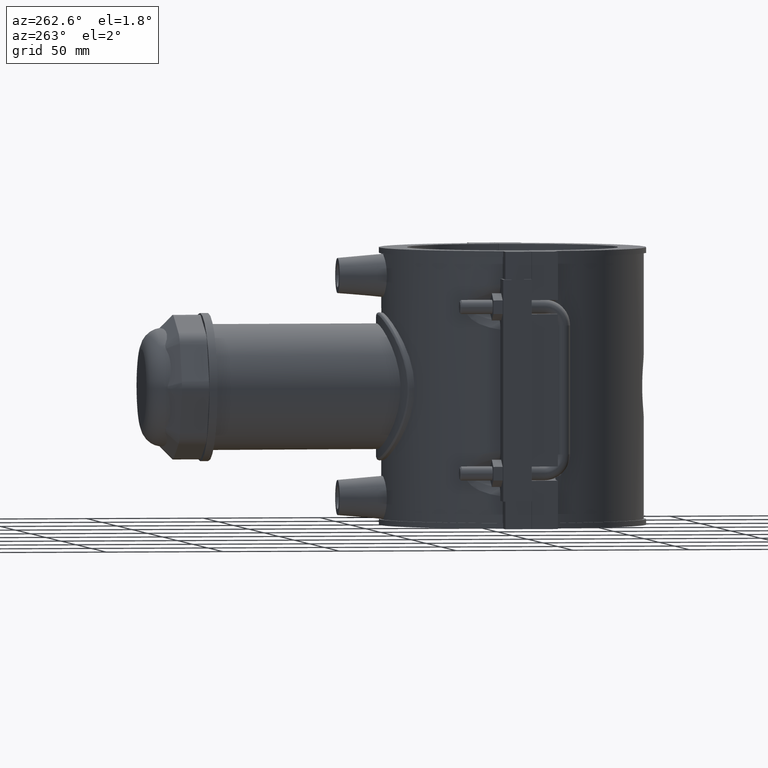
[diagram: clean part render]
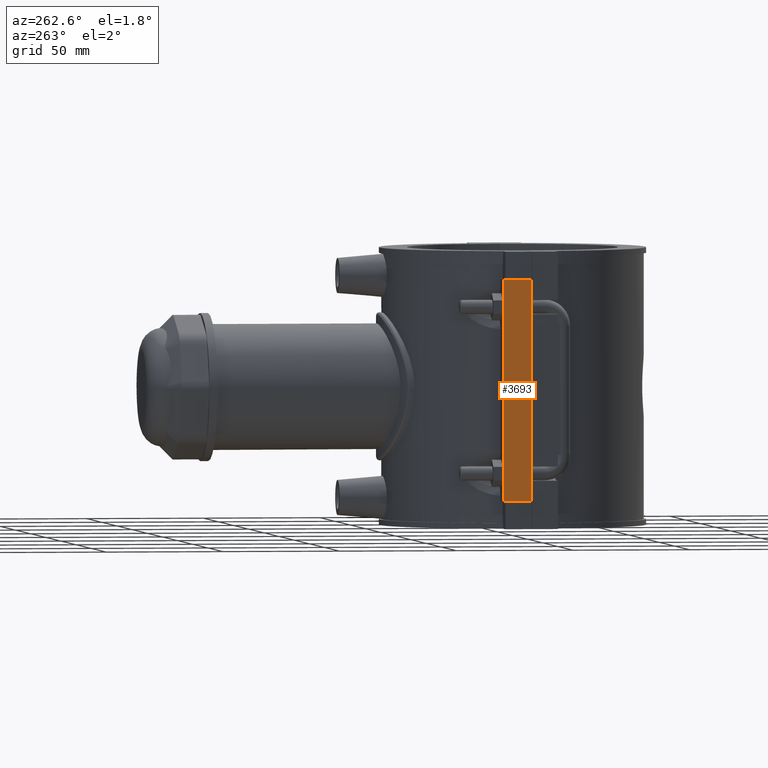
[diagram: same view with one face highlighted and labeled with its STEP entity id]
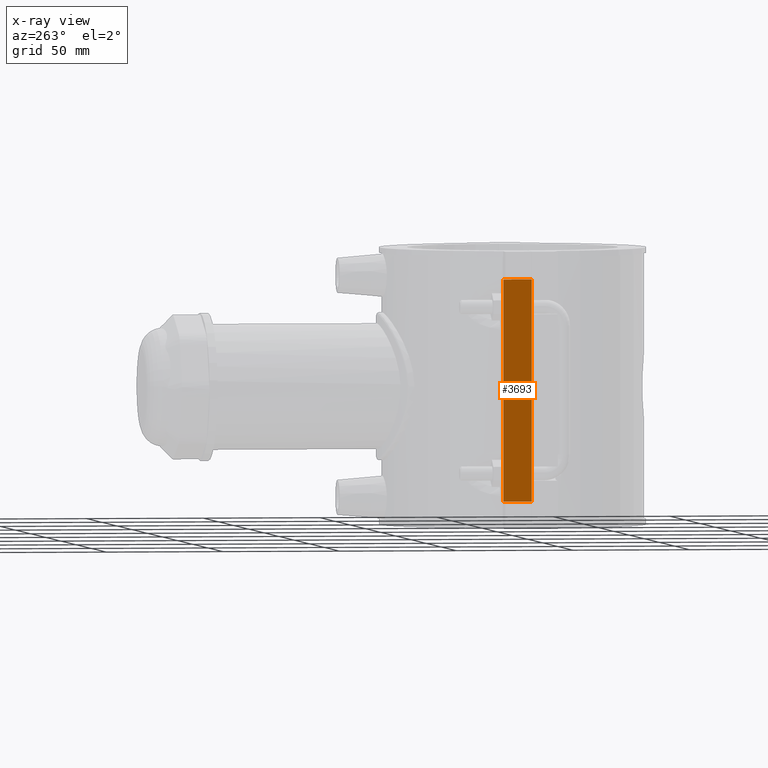
[diagram: x-ray of the same camera — body ghosted, the highlighted face saturated]
A machine part, auxiliary view. The second image highlights one B-rep face of the part: STEP entity #3693.
The next image is the same camera in x-ray: the body ghosted, the highlighted face saturated — about 0% of this face is hidden behind the body in this view.
In plain terms, the highlighted planar face has unit normal (1, 0, 0).
Its self-contained STEP definition (entity closure, byte-faithful):
#160=LINE('',#6851,#459);
#163=LINE('',#6857,#462);
#166=LINE('',#6862,#465);
#179=LINE('',#6926,#478);
#459=VECTOR('',#4526,12.2000000000001);
#462=VECTOR('',#4531,12.2000000000001);
#465=VECTOR('',#4536,94.4);
#478=VECTOR('',#4555,94.4);
#697=PLANE('',#3961);
#1044=FACE_OUTER_BOUND('',#1285,.T.);
#1285=EDGE_LOOP('',(#2910,#2911,#2912,#2913));
#1738=VERTEX_POINT('',#6848);
#1739=VERTEX_POINT('',#6850);
#1740=VERTEX_POINT('',#6854);
#1741=VERTEX_POINT('',#6856);
#2164=EDGE_CURVE('',#1739,#1738,#160,.T.);
#2167=EDGE_CURVE('',#1741,#1740,#163,.T.);
#2170=EDGE_CURVE('',#1739,#1740,#166,.T.);
#2189=EDGE_CURVE('',#1738,#1741,#179,.T.);
#2910=ORIENTED_EDGE('',*,*,#2170,.F.);
#2911=ORIENTED_EDGE('',*,*,#2164,.T.);
#2912=ORIENTED_EDGE('',*,*,#2189,.T.);
#2913=ORIENTED_EDGE('',*,*,#2167,.T.);
#3693=ADVANCED_FACE('',(#1044),#697,.F.);
#3961=AXIS2_PLACEMENT_3D('',#6925,#4553,#4554);
#4526=DIRECTION('',(0.,-1.,0.));
#4531=DIRECTION('',(0.,1.,0.));
#4536=DIRECTION('',(0.,0.,1.));
#4553=DIRECTION('center_axis',(1.,0.,0.));
#4554=DIRECTION('ref_axis',(0.,1.,0.));
#4555=DIRECTION('',(0.,0.,1.));
#6848=CARTESIAN_POINT('',(-64.,0.0500000000000078,-47.2));
#6850=CARTESIAN_POINT('',(-64.,12.2500000000001,-47.2));
#6851=CARTESIAN_POINT('',(-64.,0.0500000000000078,-47.2));
#6854=CARTESIAN_POINT('',(-64.,12.2500000000001,47.2));
#6856=CARTESIAN_POINT('',(-64.,0.0500000000000078,47.2));
#6857=CARTESIAN_POINT('',(-64.,0.0500000000000078,47.2));
#6862=CARTESIAN_POINT('',(-64.,12.2500000000001,0.));
#6925=CARTESIAN_POINT('Origin',(-64.,0.0500000000000081,0.));
#6926=CARTESIAN_POINT('',(-64.,0.0500000000000081,0.));